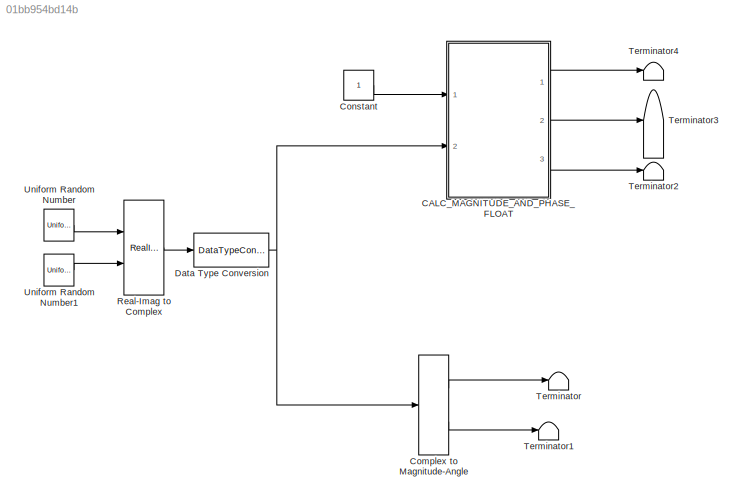
MODEL slx_01bb954bd14b
KIND model
CONFIG AbsTol = auto
CONFIG EnableMultiTasking = off
CONFIG FixedStep = auto
CONFIG MaxStep = auto
CONFIG MinStep = auto
CONFIG RelTol = 1e-3
CONFIG SampleTimeConstraint = Unconstrained
CONFIG SolverName = VariableStepAuto
CONFIG StartTime = 0.0
CONFIG StopTime = 10.0
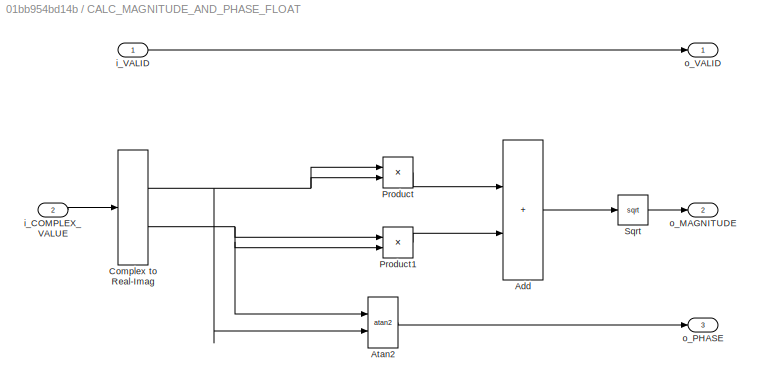
BLOCK [SubSystem] CALC_MAGNITUDE_AND_PHASE_FLOAT
  Ports = [2, 3]
  RequestExecContextInheritance = off
BLOCK [Sum] CALC_MAGNITUDE_AND_PHASE_FLOAT/Add
  IconShape = rectangular
  OutDataTypeStr = single
  Ports = [2, 1]
BLOCK [Trigonometry] CALC_MAGNITUDE_AND_PHASE_FLOAT/Atan2
  NumberOfIterations = 20
  Operator = atan2
  Ports = [2, 1]
BLOCK [ComplexToRealImag] CALC_MAGNITUDE_AND_PHASE_FLOAT/Complex to Real-Imag
  Ports = [1, 2]
BLOCK [Product] CALC_MAGNITUDE_AND_PHASE_FLOAT/Product
  OutDataTypeStr = single
  Ports = [2, 1]
  SaturateOnIntegerOverflow = on
BLOCK [Product] CALC_MAGNITUDE_AND_PHASE_FLOAT/Product1
  LockScale = on
  OutDataTypeStr = single
  Ports = [2, 1]
BLOCK [Sqrt] CALC_MAGNITUDE_AND_PHASE_FLOAT/Sqrt
  OutDataTypeStr = single
BLOCK [Inport] CALC_MAGNITUDE_AND_PHASE_FLOAT/i_COMPLEX_VALUE
  OutDataTypeStr = single
  Port = 2
BLOCK [Inport] CALC_MAGNITUDE_AND_PHASE_FLOAT/i_VALID
  OutDataTypeStr = boolean
BLOCK [Outport] CALC_MAGNITUDE_AND_PHASE_FLOAT/o_MAGNITUDE
  OutDataTypeStr = single
  Port = 2
BLOCK [Outport] CALC_MAGNITUDE_AND_PHASE_FLOAT/o_PHASE
  OutDataTypeStr = single
  Port = 3
BLOCK [Outport] CALC_MAGNITUDE_AND_PHASE_FLOAT/o_VALID
  OutDataTypeStr = boolean
BLOCK [ComplexToMagnitudeAngle] Complex to Magnitude-Angle
  Ports = [1, 2]
BLOCK [Constant] Constant
  OutDataTypeStr = boolean
  SampleTime = 1
BLOCK [DataTypeConversion] Data Type Conversion
  OutDataTypeStr = single
  RndMeth = Floor
  SaturateOnIntegerOverflow = off
BLOCK [RealImagToComplex] Real-Imag to Complex
  Ports = [2, 1]
BLOCK [Terminator] Terminator
BLOCK [Terminator] Terminator1
BLOCK [Terminator] Terminator2
BLOCK [Terminator] Terminator3
BLOCK [Terminator] Terminator4
BLOCK [UniformRandomNumber] Uniform Random Number
  Maximum = 1.99999999953433871269
  Minimum = 0
  SampleTime = 1
  Seed = 1
BLOCK [UniformRandomNumber] Uniform Random Number1
  Maximum = 1.99999999953433871269
  Minimum = 0
  SampleTime = 1
  Seed = 2
LINE CALC_MAGNITUDE_AND_PHASE_FLOAT/Add:1 -> CALC_MAGNITUDE_AND_PHASE_FLOAT/Sqrt:1
LINE CALC_MAGNITUDE_AND_PHASE_FLOAT/Atan2:1 -> CALC_MAGNITUDE_AND_PHASE_FLOAT/o_PHASE:1
NET CALC_MAGNITUDE_AND_PHASE_FLOAT/Complex to Real-Imag:1 -> CALC_MAGNITUDE_AND_PHASE_FLOAT/Atan2:2, CALC_MAGNITUDE_AND_PHASE_FLOAT/Product:1, CALC_MAGNITUDE_AND_PHASE_FLOAT/Product:2
NET CALC_MAGNITUDE_AND_PHASE_FLOAT/Complex to Real-Imag:2 -> CALC_MAGNITUDE_AND_PHASE_FLOAT/Atan2:1, CALC_MAGNITUDE_AND_PHASE_FLOAT/Product1:1, CALC_MAGNITUDE_AND_PHASE_FLOAT/Product1:2
LINE CALC_MAGNITUDE_AND_PHASE_FLOAT/Product1:1 -> CALC_MAGNITUDE_AND_PHASE_FLOAT/Add:2
LINE CALC_MAGNITUDE_AND_PHASE_FLOAT/Product:1 -> CALC_MAGNITUDE_AND_PHASE_FLOAT/Add:1
LINE CALC_MAGNITUDE_AND_PHASE_FLOAT/Sqrt:1 -> CALC_MAGNITUDE_AND_PHASE_FLOAT/o_MAGNITUDE:1
LINE CALC_MAGNITUDE_AND_PHASE_FLOAT/i_COMPLEX_VALUE:1 -> CALC_MAGNITUDE_AND_PHASE_FLOAT/Complex to Real-Imag:1
LINE CALC_MAGNITUDE_AND_PHASE_FLOAT/i_VALID:1 -> CALC_MAGNITUDE_AND_PHASE_FLOAT/o_VALID:1
LINE CALC_MAGNITUDE_AND_PHASE_FLOAT:1 -> Terminator4:1
LINE CALC_MAGNITUDE_AND_PHASE_FLOAT:2 -> Terminator3:1
LINE CALC_MAGNITUDE_AND_PHASE_FLOAT:3 -> Terminator2:1
LINE Complex to Magnitude-Angle:1 -> Terminator:1
LINE Complex to Magnitude-Angle:2 -> Terminator1:1
LINE Constant:1 -> CALC_MAGNITUDE_AND_PHASE_FLOAT:1
NET Data Type Conversion:1 -> CALC_MAGNITUDE_AND_PHASE_FLOAT:2, Complex to Magnitude-Angle:1
LINE Real-Imag to Complex:1 -> Data Type Conversion:1
LINE Uniform Random Number1:1 -> Real-Imag to Complex:2
LINE Uniform Random Number:1 -> Real-Imag to Complex:1
note: NET lines group one-source signal fan-out (src -> all destinations, sorted); 1:1 wires keep LINE
